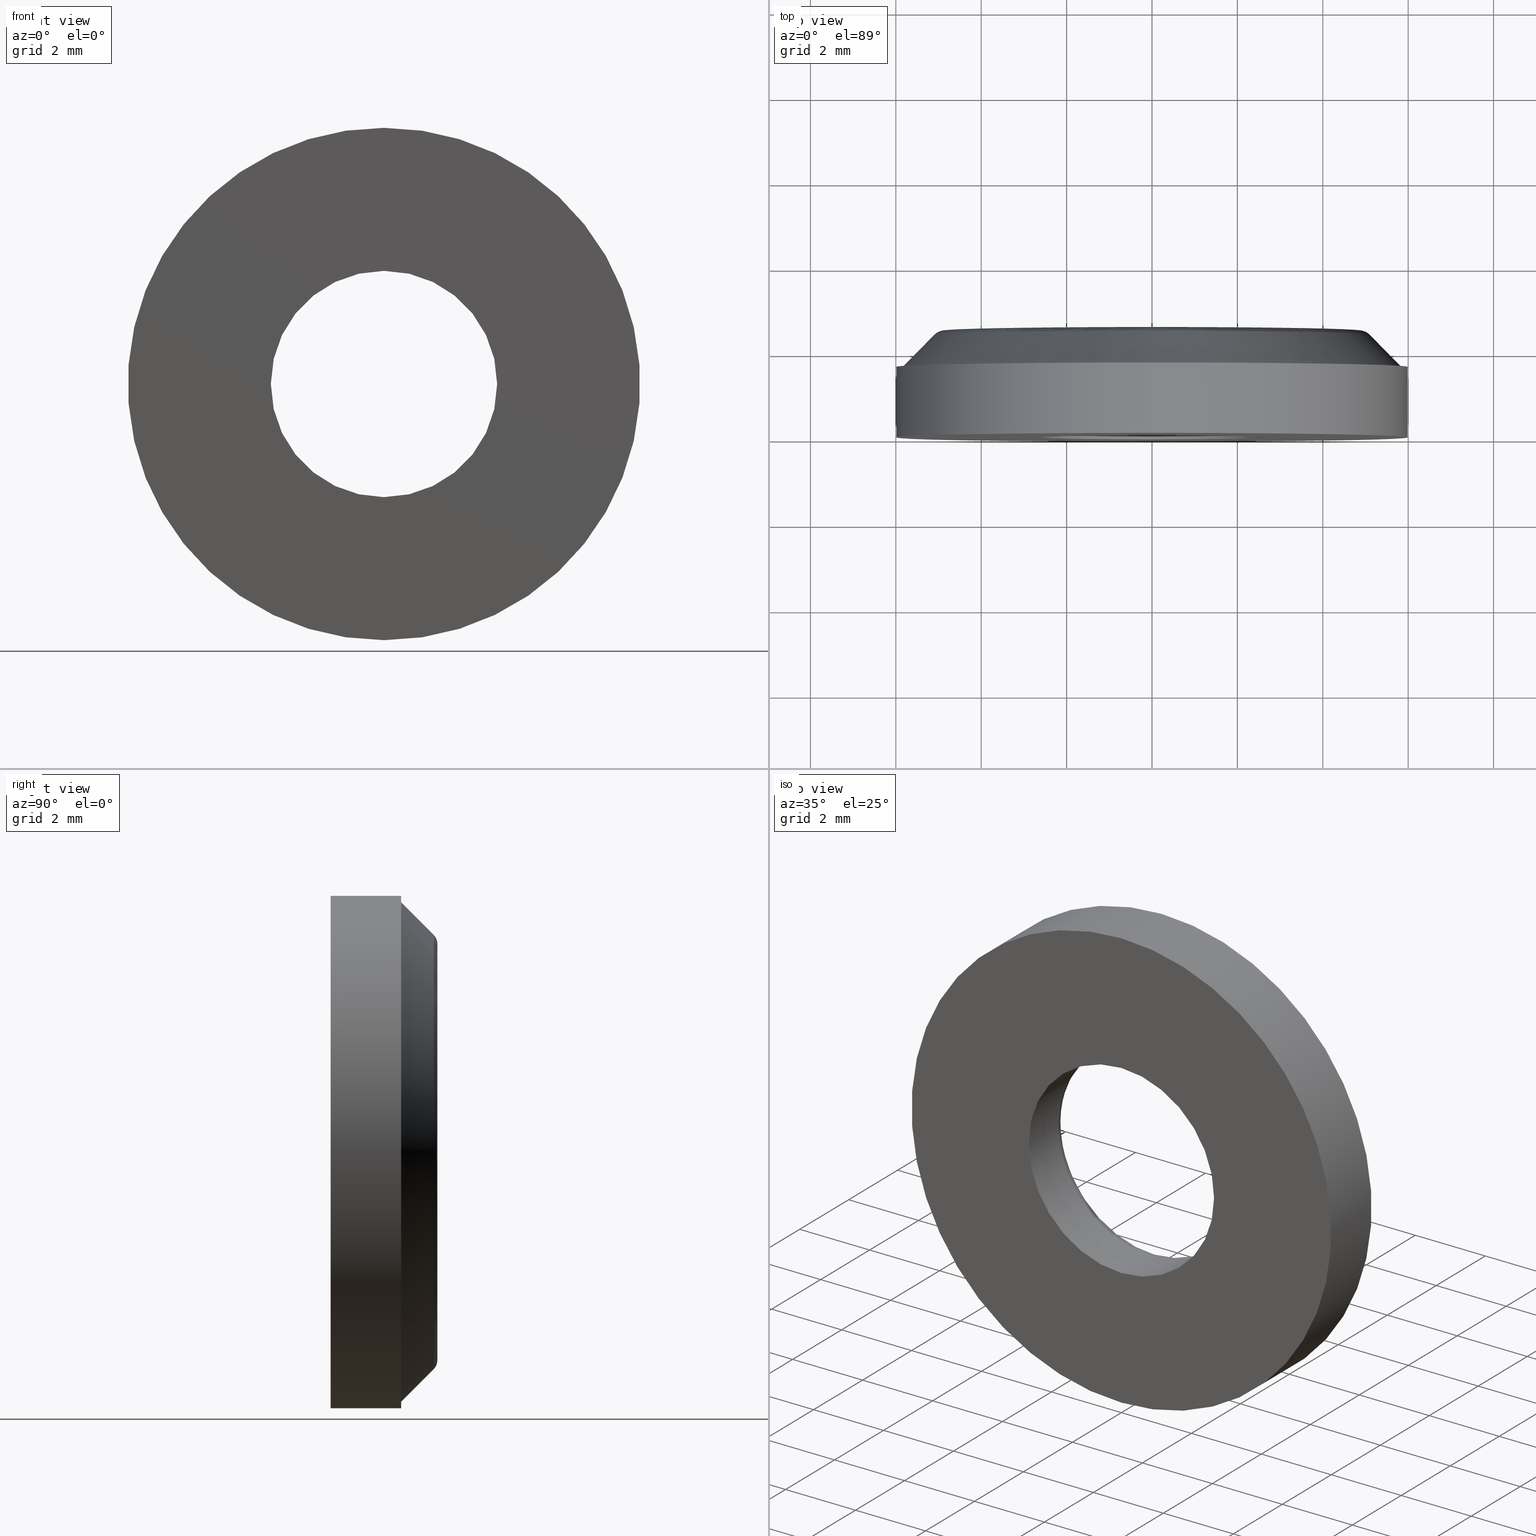
[diagram: canonical four-view strip — front | top / right | iso, engineering-drawing reading convention]
A machine part, canonical four-view strip (front | top / right | iso — engineering-drawing reading convention). The complete STEP part file that produces these views, byte-faithful:
ISO-10303-21;
HEADER;
FILE_DESCRIPTION (( 'STEP AP214' ),
    '1' );
FILE_NAME ('THA_270_3.STEP',
    '2015-04-27T05:53:08',
    ( '' ),
    ( '' ),
    'SwSTEP 2.0',
    'SolidWorks 2015',
    '' );
FILE_SCHEMA (( 'AUTOMOTIVE_DESIGN' ));
ENDSEC;

DATA;
#1 = CARTESIAN_POINT ( 'NONE',  ( 0.0000000000000000000, 2.500000000000000000, 0.0000000000000000000 ) ) ;
#2 = DIRECTION ( 'NONE',  ( 0.0000000000000000000, 1.000000000000000000, 0.0000000000000000000 ) ) ;
#3 = PLANE ( 'NONE',  #268 ) ;
#4 = DIRECTION ( 'NONE',  ( 0.0000000000000000000, 0.0000000000000000000, 1.000000000000000000 ) ) ;
#5 = CARTESIAN_POINT ( 'NONE',  ( 7.347880794884120700E-016, 2.500000000000000000, 6.000000000000000900 ) ) ;
#6 = ORIENTED_EDGE ( 'NONE', *, *, #134, .T. ) ;
#7 =( GEOMETRIC_REPRESENTATION_CONTEXT ( 3 ) GLOBAL_UNCERTAINTY_ASSIGNED_CONTEXT ( ( #231 ) ) GLOBAL_UNIT_ASSIGNED_CONTEXT ( ( #318, #25, #278 ) ) REPRESENTATION_CONTEXT ( 'NONE', 'WORKASPACE' ) );
#8 = DIRECTION ( 'NONE',  ( 0.0000000000000000000, 0.0000000000000000000, -1.000000000000000000 ) ) ;
#9 = CARTESIAN_POINT ( 'NONE',  ( 0.0000000000000000000, 2.500000000000000000, 0.0000000000000000000 ) ) ;
#10 = ADVANCED_FACE ( 'NONE', ( #365 ), #43, .T. ) ;
#11 = DIRECTION ( 'NONE',  ( -0.0000000000000000000, 1.000000000000000000, -0.0000000000000000000 ) ) ;
#12 = VECTOR ( 'NONE', #108, 1000.000000000000000 ) ;
#13 = VERTEX_POINT ( 'NONE', #41 ) ;
#14 = EDGE_CURVE ( 'NONE', #104, #13, #141, .T. ) ;
#15 = CIRCLE ( 'NONE', #37, 6.000000000000001800 ) ;
#16 = AXIS2_PLACEMENT_3D ( 'NONE', #465, #442, #262 ) ;
#17 = VERTEX_POINT ( 'NONE', #145 ) ;
#18 = ORIENTED_EDGE ( 'NONE', *, *, #426, .T. ) ;
#19 = FACE_BOUND ( 'NONE', #250, .T. ) ;
#20 = ORIENTED_EDGE ( 'NONE', *, *, #456, .T. ) ;
#21 = DIRECTION ( 'NONE',  ( 0.0000000000000000000, 0.0000000000000000000, 1.000000000000000000 ) ) ;
#22 = AXIS2_PLACEMENT_3D ( 'NONE', #1, #282, #329 ) ;
#23 =( REPRESENTATION_RELATIONSHIP ('NONE','NONE', #330, #362 ) REPRESENTATION_RELATIONSHIP_WITH_TRANSFORMATION ( #317 )SHAPE_REPRESENTATION_RELATIONSHIP( ) );
#24 = FACE_BOUND ( 'NONE', #175, .T. ) ;
#25 =( NAMED_UNIT ( * ) PLANE_ANGLE_UNIT ( ) SI_UNIT ( $, .RADIAN. ) );
#26 = VERTEX_POINT ( 'NONE', #59 ) ;
#27 = DIRECTION ( 'NONE',  ( 0.0000000000000000000, 0.0000000000000000000, 1.000000000000000000 ) ) ;
#28 = CARTESIAN_POINT ( 'NONE',  ( 0.0000000000000000000, 1.200000000000000200, 0.0000000000000000000 ) ) ;
#29 = CIRCLE ( 'NONE', #407, 0.2999999999999999300 ) ;
#30 = CIRCLE ( 'NONE', #357, 6.000000000000000900 ) ;
#31 = CARTESIAN_POINT ( 'NONE',  ( 5.021051876504147400E-016, 1.500000000000000000, -4.099999999999999600 ) ) ;
#32 = DIRECTION ( 'NONE',  ( 1.000000000000000000, 0.0000000000000000000, 0.0000000000000000000 ) ) ;
#33 = DIRECTION ( 'NONE',  ( 0.0000000000000000000, 1.000000000000000000, 0.0000000000000000000 ) ) ;
#34 = TOROIDAL_SURFACE ( 'NONE', #149, 4.875735931288076600, 0.2999999999999999900 ) ;
#35 = DIRECTION ( 'NONE',  ( 0.0000000000000000000, -1.000000000000000000, 0.0000000000000000000 ) ) ;
#36 = APPLICATION_PROTOCOL_DEFINITION ( 'draft international standard', 'automotive_design', 1998, #121 ) ;
#37 = AXIS2_PLACEMENT_3D ( 'NONE', #305, #509, #51 ) ;
#38 = CARTESIAN_POINT ( 'NONE',  ( 0.0000000000000000000, 0.0000000000000000000, 0.0000000000000000000 ) ) ;
#39 = EDGE_LOOP ( 'NONE', ( #384, #220, #395, #169 ) ) ;
#40 = DIRECTION ( 'NONE',  ( 1.000000000000000000, 0.0000000000000000000, 0.0000000000000000000 ) ) ;
#41 = CARTESIAN_POINT ( 'NONE',  ( 6.697512496811174300E-016, 2.412132034355963100, 5.087867965644041300 ) ) ;
#42 = EDGE_CURVE ( 'NONE', #448, #319, #363, .T. ) ;
#43 = TOROIDAL_SURFACE ( 'NONE', #401, 2.949999999999999300, 0.2999999999999999900 ) ;
#44 = ORIENTED_EDGE ( 'NONE', *, *, #381, .T. ) ;
#45 = DIRECTION ( 'NONE',  ( -0.0000000000000000000, 1.000000000000000000, -0.0000000000000000000 ) ) ;
#46 = EDGE_CURVE ( 'NONE', #13, #104, #255, .T. ) ;
#47 = AXIS2_PLACEMENT_3D ( 'NONE', #408, #161, #207 ) ;
#48 = ORIENTED_EDGE ( 'NONE', *, *, #296, .F. ) ;
#49 = ORIENTED_EDGE ( 'NONE', *, *, #266, .T. ) ;
#50 = ORIENTED_EDGE ( 'NONE', *, *, #53, .F. ) ;
#51 = DIRECTION ( 'NONE',  ( 0.0000000000000000000, 0.0000000000000000000, 1.000000000000000000 ) ) ;
#52 = PRODUCT_DEFINITION_SHAPE ( 'NONE', 'NONE',  #515 ) ;
#53 = EDGE_CURVE ( 'NONE', #508, #180, #30, .T. ) ;
#54 = EDGE_CURVE ( 'NONE', #17, #493, #453, .T. ) ;
#55 = CARTESIAN_POINT ( 'NONE',  ( 3.612708057484691600E-016, 1.200000000000000200, -2.949999999999999300 ) ) ;
#56 = VERTEX_POINT ( 'NONE', #310 ) ;
#57 = CARTESIAN_POINT ( 'NONE',  ( 7.164183775012018400E-016, 1.649999999999999900, 5.850000000000002300 ) ) ;
#58 = AXIS2_PLACEMENT_3D ( 'NONE', #188, #157, #191 ) ;
#59 = CARTESIAN_POINT ( 'NONE',  ( 3.245314017740485500E-016, 1.200000000000000200, 2.649999999999999500 ) ) ;
#60 = DIRECTION ( 'NONE',  ( 0.0000000000000000000, 1.000000000000000000, 0.0000000000000000000 ) ) ;
#61 = ORIENTED_EDGE ( 'NONE', *, *, #67, .F. ) ;
#62 = CARTESIAN_POINT ( 'NONE',  ( 5.021051876504147400E-016, 2.500000000000000000, -4.099999999999999600 ) ) ;
#63 = ORIENTED_EDGE ( 'NONE', *, *, #173, .T. ) ;
#64 = EDGE_CURVE ( 'NONE', #378, #156, #348, .T. ) ;
#65 = CARTESIAN_POINT ( 'NONE',  ( 0.0000000000000000000, 1.200000000000000200, 0.0000000000000000000 ) ) ;
#66 = DIRECTION ( 'NONE',  ( -0.0000000000000000000, -1.000000000000000000, -0.0000000000000000000 ) ) ;
#67 = EDGE_CURVE ( 'NONE', #56, #290, #238, .T. ) ;
#68 = DIRECTION ( 'NONE',  ( 0.0000000000000000000, -1.000000000000000000, 0.0000000000000000000 ) ) ;
#69 = FACE_BOUND ( 'NONE', #298, .T. ) ;
#70 = CARTESIAN_POINT ( 'NONE',  ( 0.0000000000000000000, 1.649999999999999900, 0.0000000000000000000 ) ) ;
#71 = EDGE_CURVE ( 'NONE', #156, #301, #133, .T. ) ;
#72 =( NAMED_UNIT ( * ) SI_UNIT ( $, .STERADIAN. ) SOLID_ANGLE_UNIT ( ) );
#73 = AXIS2_PLACEMENT_3D ( 'NONE', #38, #333, #374 ) ;
#74 = ORIENTED_EDGE ( 'NONE', *, *, #380, .T. ) ;
#75 = DIRECTION ( 'NONE',  ( 0.0000000000000000000, -0.0000000000000000000, 1.000000000000000000 ) ) ;
#76 = CARTESIAN_POINT ( 'NONE',  ( 0.0000000000000000000, 1.200000000000000200, -2.649999999999999500 ) ) ;
#77 = PLANE ( 'NONE',  #485 ) ;
#78 = DIRECTION ( 'NONE',  ( -0.0000000000000000000, -1.000000000000000000, -0.0000000000000000000 ) ) ;
#79 = CARTESIAN_POINT ( 'NONE',  ( 0.0000000000000000000, 0.0000000000000000000, 0.0000000000000000000 ) ) ;
#80 = EDGE_CURVE ( 'NONE', #261, #91, #457, .T. ) ;
#81 = AXIS2_PLACEMENT_3D ( 'NONE', #181, #321, #40 ) ;
#82 = CARTESIAN_POINT ( 'NONE',  ( 0.0000000000000000000, 2.412132034355963100, 0.0000000000000000000 ) ) ;
#83 = ORIENTED_EDGE ( 'NONE', *, *, #467, .T. ) ;
#84 = EDGE_LOOP ( 'NONE', ( #162, #49, #88, #153 ) ) ;
#85 = FACE_OUTER_BOUND ( 'NONE', #373, .T. ) ;
#86 = LINE ( 'NONE', #57, #452 ) ;
#87 = LINE ( 'NONE', #399, #287 ) ;
#88 = ORIENTED_EDGE ( 'NONE', *, *, #144, .T. ) ;
#89 = AXIS2_PLACEMENT_3D ( 'NONE', #201, #35, #482 ) ;
#90 = FACE_OUTER_BOUND ( 'NONE', #289, .T. ) ;
#91 = VERTEX_POINT ( 'NONE', #151 ) ;
#92 = ORIENTED_EDGE ( 'NONE', *, *, #340, .T. ) ;
#93 = SURFACE_STYLE_FILL_AREA ( #284 ) ;
#94 =( LENGTH_UNIT ( ) NAMED_UNIT ( * ) SI_UNIT ( .MILLI., .METRE. ) );
#95 = EDGE_CURVE ( 'NONE', #17, #508, #113, .T. ) ;
#96 = CIRCLE ( 'NONE', #281, 4.099999999999999600 ) ;
#97 = EDGE_LOOP ( 'NONE', ( #273, #20, #483, #233 ) ) ;
#98 = AXIS2_PLACEMENT_3D ( 'NONE', #474, #236, #390 ) ;
#99 = CARTESIAN_POINT ( 'NONE',  ( 0.0000000000000000000, 1.500000000000000000, 0.0000000000000000000 ) ) ;
#100 = CYLINDRICAL_SURFACE ( 'NONE', #58, 6.000000000000000900 ) ;
#101 = FILL_AREA_STYLE ('',( #263 ) ) ;
#102 = APPLICATION_PROTOCOL_DEFINITION ( 'draft international standard', 'automotive_design', 1998, #206 ) ;
#103 = SHAPE_DEFINITION_REPRESENTATION ( #226, #362 ) ;
#104 = VERTEX_POINT ( 'NONE', #123 ) ;
#105 = CARTESIAN_POINT ( 'NONE',  ( 0.0000000000000000000, 0.0000000000000000000, -6.000000000000000900 ) ) ;
#106 = EDGE_LOOP ( 'NONE', ( #44, #214, #337, #225 ) ) ;
#107 = AXIS2_PLACEMENT_3D ( 'NONE', #234, #359, #155 ) ;
#108 = DIRECTION ( 'NONE',  ( -0.0000000000000000000, -1.000000000000000000, -0.0000000000000000000 ) ) ;
#109 = CARTESIAN_POINT ( 'NONE',  ( 7.164183775012018400E-016, 1.649999999999999900, 5.850000000000002300 ) ) ;
#110 = DIRECTION ( 'NONE',  ( 0.0000000000000000000, 0.0000000000000000000, 1.000000000000000000 ) ) ;
#111 = ADVANCED_FACE ( 'NONE', ( #19, #325 ), #77, .F. ) ;
#112 = DIRECTION ( 'NONE',  ( -0.0000000000000000000, 1.000000000000000000, -0.0000000000000000000 ) ) ;
#113 = LINE ( 'NONE', #235, #12 ) ;
#114 = DIRECTION ( 'NONE',  ( -0.0000000000000000000, 1.000000000000000000, -0.0000000000000000000 ) ) ;
#115 = CARTESIAN_POINT ( 'NONE',  ( 0.0000000000000000000, 1.500000000000000000, 0.0000000000000000000 ) ) ;
#116 = CYLINDRICAL_SURFACE ( 'NONE', #245, 6.000000000000000900 ) ;
#117 = ADVANCED_FACE ( 'NONE', ( #424 ), #512, .F. ) ;
#118 = FACE_BOUND ( 'NONE', #345, .T. ) ;
#119 = DIRECTION ( 'NONE',  ( 0.0000000000000000000, 1.000000000000000000, 0.0000000000000000000 ) ) ;
#120 = EDGE_CURVE ( 'NONE', #301, #320, #96, .T. ) ;
#121 = APPLICATION_CONTEXT ( 'automotive_design' ) ;
#122 = AXIS2_PLACEMENT_3D ( 'NONE', #311, #361, #430 ) ;
#123 = CARTESIAN_POINT ( 'NONE',  ( 0.0000000000000000000, 2.412132034355963100, -5.087867965644041300 ) ) ;
#124 = AXIS2_PLACEMENT_3D ( 'NONE', #251, #447, #480 ) ;
#125 = ORIENTED_EDGE ( 'NONE', *, *, #139, .F. ) ;
#126 = ORIENTED_EDGE ( 'NONE', *, *, #80, .F. ) ;
#127 = DIRECTION ( 'NONE',  ( 1.000000000000000000, -0.0000000000000000000, 1.224646799147353200E-016 ) ) ;
#128 = CARTESIAN_POINT ( 'NONE',  ( 0.0000000000000000000, 1.649999999999999900, 5.850000000000002300 ) ) ;
#129 = PLANE ( 'NONE',  #328 ) ;
#130 = ADVANCED_FACE ( 'NONE', ( #217 ), #224, .T. ) ;
#131 = EDGE_CURVE ( 'NONE', #148, #432, #416, .T. ) ;
#132 = COLOUR_RGB ( '',0.7921568627450980000, 0.8196078431372548800, 0.9333333333333333500 ) ;
#133 = LINE ( 'NONE', #354, #439 ) ;
#134 = EDGE_CURVE ( 'NONE', #319, #448, #343, .T. ) ;
#135 = ORIENTED_EDGE ( 'NONE', *, *, #418, .T. ) ;
#136 = AXIS2_PLACEMENT_3D ( 'NONE', #279, #119, #239 ) ;
#137 = LINE ( 'NONE', #253, #500 ) ;
#138 = EDGE_LOOP ( 'NONE', ( #389, #48, #142, #498 ) ) ;
#139 = EDGE_CURVE ( 'NONE', #320, #301, #306, .T. ) ;
#140 =( GEOMETRIC_REPRESENTATION_CONTEXT ( 3 ) GLOBAL_UNCERTAINTY_ASSIGNED_CONTEXT ( ( #172 ) ) GLOBAL_UNIT_ASSIGNED_CONTEXT ( ( #237, #351, #481 ) ) REPRESENTATION_CONTEXT ( 'NONE', 'WORKASPACE' ) );
#141 = CIRCLE ( 'NONE', #293, 5.087867965644041300 ) ;
#142 = ORIENTED_EDGE ( 'NONE', *, *, #294, .T. ) ;
#143 = SHAPE_REPRESENTATION_RELATIONSHIP ( 'NONE' , 'NONE' ,  #362, #494 ) ;
#144 = EDGE_CURVE ( 'NONE', #180, #508, #203, .T. ) ;
#145 = CARTESIAN_POINT ( 'NONE',  ( 0.0000000000000000000, 1.649999999999999900, -6.000000000000002700 ) ) ;
#146 = EDGE_CURVE ( 'NONE', #505, #91, #503, .T. ) ;
#147 = SURFACE_SIDE_STYLE ('',( #93 ) ) ;
#148 = VERTEX_POINT ( 'NONE', #276 ) ;
#149 = AXIS2_PLACEMENT_3D ( 'NONE', #446, #2, #110 ) ;
#150 = CARTESIAN_POINT ( 'NONE',  ( 0.0000000000000000000, 0.0000000000000000000, 0.0000000000000000000 ) ) ;
#151 = CARTESIAN_POINT ( 'NONE',  ( 0.0000000000000000000, 0.0000000000000000000, -2.649999999999999500 ) ) ;
#152 = UNCERTAINTY_MEASURE_WITH_UNIT (LENGTH_MEASURE( 1.000000000000000100E-005 ), #94, 'distance_accuracy_value', 'NONE');
#153 = ORIENTED_EDGE ( 'NONE', *, *, #95, .F. ) ;
#154 = ADVANCED_FACE ( 'NONE', ( #183 ), #403, .T. ) ;
#155 = DIRECTION ( 'NONE',  ( 1.000000000000000000, 0.0000000000000000000, 0.0000000000000000000 ) ) ;
#156 = VERTEX_POINT ( 'NONE', #31 ) ;
#157 = DIRECTION ( 'NONE',  ( -0.0000000000000000000, -1.000000000000000000, -0.0000000000000000000 ) ) ;
#158 = AXIS2_PLACEMENT_3D ( 'NONE', #55, #127, #441 ) ;
#159 = DIRECTION ( 'NONE',  ( -0.0000000000000000000, -1.000000000000000000, -0.0000000000000000000 ) ) ;
#160 = APPLICATION_CONTEXT ( 'automotive_design' ) ;
#161 = DIRECTION ( 'NONE',  ( 0.0000000000000000000, 1.000000000000000000, 0.0000000000000000000 ) ) ;
#162 = ORIENTED_EDGE ( 'NONE', *, *, #418, .F. ) ;
#163 = CARTESIAN_POINT ( 'NONE',  ( 0.0000000000000000000, 1.200000000000000200, 2.949999999999999300 ) ) ;
#164 = CARTESIAN_POINT ( 'NONE',  ( 0.0000000000000000000, 1.500000000000000000, 2.949999999999999300 ) ) ;
#165 = DIRECTION ( 'NONE',  ( 0.0000000000000000000, 0.0000000000000000000, -1.000000000000000000 ) ) ;
#166 = EDGE_CURVE ( 'NONE', #26, #261, #87, .T. ) ;
#167 = AXIS2_PLACEMENT_3D ( 'NONE', #150, #372, #196 ) ;
#168 = DIRECTION ( 'NONE',  ( 0.0000000000000000000, -1.000000000000000000, 0.0000000000000000000 ) ) ;
#169 = ORIENTED_EDGE ( 'NONE', *, *, #53, .T. ) ;
#170 = ORIENTED_EDGE ( 'NONE', *, *, #144, .F. ) ;
#171 = CARTESIAN_POINT ( 'NONE',  ( 0.0000000000000000000, 2.500000000000000000, 0.0000000000000000000 ) ) ;
#172 = UNCERTAINTY_MEASURE_WITH_UNIT (LENGTH_MEASURE( 1.000000000000000100E-005 ), #237, 'distance_accuracy_value', 'NONE');
#173 = EDGE_CURVE ( 'NONE', #104, #56, #137, .T. ) ;
#174 = FACE_OUTER_BOUND ( 'NONE', #97, .T. ) ;
#175 = EDGE_LOOP ( 'NONE', ( #125, #458 ) ) ;
#176 = ORIENTED_EDGE ( 'NONE', *, *, #294, .F. ) ;
#177 = AXIS2_PLACEMENT_3D ( 'NONE', #227, #396, #4 ) ;
#178 = VECTOR ( 'NONE', #197, 1000.000000000000000 ) ;
#179 = ORIENTED_EDGE ( 'NONE', *, *, #46, .T. ) ;
#180 = VERTEX_POINT ( 'NONE', #230 ) ;
#181 = CARTESIAN_POINT ( 'NONE',  ( 0.0000000000000000000, 0.0000000000000000000, 0.0000000000000000000 ) ) ;
#182 = APPLICATION_CONTEXT ( 'automotive_design' ) ;
#183 = FACE_OUTER_BOUND ( 'NONE', #350, .T. ) ;
#184 = ORIENTED_EDGE ( 'NONE', *, *, #166, .F. ) ;
#185 = DIRECTION ( 'NONE',  ( 0.0000000000000000000, 0.0000000000000000000, 1.000000000000000000 ) ) ;
#186 = CARTESIAN_POINT ( 'NONE',  ( 0.0000000000000000000, 2.500000000000000000, 4.099999999999999600 ) ) ;
#187 = PRESENTATION_STYLE_ASSIGNMENT (( #427 ) ) ;
#188 = CARTESIAN_POINT ( 'NONE',  ( 0.0000000000000000000, 2.500000000000000000, 0.0000000000000000000 ) ) ;
#189 = DIRECTION ( 'NONE',  ( 0.0000000000000000000, 1.000000000000000000, 0.0000000000000000000 ) ) ;
#190 = EDGE_CURVE ( 'NONE', #13, #448, #304, .T. ) ;
#191 = DIRECTION ( 'NONE',  ( 0.0000000000000000000, 0.0000000000000000000, -1.000000000000000000 ) ) ;
#192 = ORIENTED_EDGE ( 'NONE', *, *, #467, .F. ) ;
#193 = PRODUCT_DEFINITION ( 'UNKNOWN', '', #341, #370 ) ;
#194 = DIRECTION ( 'NONE',  ( -0.0000000000000000000, 1.000000000000000000, -0.0000000000000000000 ) ) ;
#195 = ORIENTED_EDGE ( 'NONE', *, *, #264, .F. ) ;
#196 = DIRECTION ( 'NONE',  ( 1.000000000000000000, 0.0000000000000000000, 0.0000000000000000000 ) ) ;
#197 = DIRECTION ( 'NONE',  ( -0.0000000000000000000, -1.000000000000000000, -0.0000000000000000000 ) ) ;
#198 = CARTESIAN_POINT ( 'NONE',  ( 0.0000000000000000000, 2.500000000000000000, 0.0000000000000000000 ) ) ;
#199 = DIRECTION ( 'NONE',  ( 0.0000000000000000000, -0.7071067811865489100, -0.7071067811865462400 ) ) ;
#200 = EDGE_CURVE ( 'NONE', #148, #505, #386, .T. ) ;
#201 = CARTESIAN_POINT ( 'NONE',  ( 0.0000000000000000000, 1.649999999999999900, 0.0000000000000000000 ) ) ;
#202 = CARTESIAN_POINT ( 'NONE',  ( 0.0000000000000000000, 1.500000000000000000, 4.099999999999999600 ) ) ;
#203 = CIRCLE ( 'NONE', #73, 6.000000000000000900 ) ;
#204 = ORIENTED_EDGE ( 'NONE', *, *, #14, .F. ) ;
#205 = DIRECTION ( 'NONE',  ( 0.0000000000000000000, -1.000000000000000000, 0.0000000000000000000 ) ) ;
#206 = APPLICATION_CONTEXT ( 'automotive_design' ) ;
#207 = DIRECTION ( 'NONE',  ( 0.0000000000000000000, 0.0000000000000000000, 1.000000000000000000 ) ) ;
#208 = CONICAL_SURFACE ( 'NONE', #89, 5.850000000000002300, 0.7853981633974463900 ) ;
#209 = CIRCLE ( 'NONE', #506, 2.649999999999999500 ) ;
#210 =( NAMED_UNIT ( * ) PLANE_ANGLE_UNIT ( ) SI_UNIT ( $, .RADIAN. ) );
#211 = AXIS2_PLACEMENT_3D ( 'NONE', #198, #68, #303 ) ;
#212 = ORIENTED_EDGE ( 'NONE', *, *, #71, .T. ) ;
#213 = ADVANCED_FACE ( 'NONE', ( #352 ), #116, .T. ) ;
#214 = ORIENTED_EDGE ( 'NONE', *, *, #166, .T. ) ;
#215 = DIRECTION ( 'NONE',  ( 0.0000000000000000000, 0.0000000000000000000, -1.000000000000000000 ) ) ;
#216 = EDGE_CURVE ( 'NONE', #378, #320, #367, .T. ) ;
#217 = FACE_OUTER_BOUND ( 'NONE', #464, .T. ) ;
#218 = EDGE_LOOP ( 'NONE', ( #383, #6 ) ) ;
#219 = FACE_OUTER_BOUND ( 'NONE', #260, .T. ) ;
#220 = ORIENTED_EDGE ( 'NONE', *, *, #54, .F. ) ;
#221 = ORIENTED_EDGE ( 'NONE', *, *, #134, .F. ) ;
#222 = CONTEXT_DEPENDENT_SHAPE_REPRESENTATION ( #23, #52 ) ;
#223 = UNCERTAINTY_MEASURE_WITH_UNIT (LENGTH_MEASURE( 1.000000000000000100E-005 ), #444, 'distance_accuracy_value', 'NONE');
#224 = TOROIDAL_SURFACE ( 'NONE', #511, 2.949999999999999300, 0.2999999999999999900 ) ;
#225 = ORIENTED_EDGE ( 'NONE', *, *, #146, .F. ) ;
#226 = PRODUCT_DEFINITION_SHAPE ( 'NONE', 'NONE',  #193 ) ;
#227 = CARTESIAN_POINT ( 'NONE',  ( 0.0000000000000000000, 1.500000000000000000, 0.0000000000000000000 ) ) ;
#228 = ADVANCED_FACE ( 'NONE', ( #118, #90 ), #3, .F. ) ;
#229 = FACE_OUTER_BOUND ( 'NONE', #497, .T. ) ;
#230 = CARTESIAN_POINT ( 'NONE',  ( 7.347880794884120700E-016, 0.0000000000000000000, 6.000000000000000900 ) ) ;
#231 = UNCERTAINTY_MEASURE_WITH_UNIT (LENGTH_MEASURE( 1.000000000000000100E-005 ), #318, 'distance_accuracy_value', 'NONE');
#232 = EDGE_LOOP ( 'NONE', ( #50, #170 ) ) ;
#233 = ORIENTED_EDGE ( 'NONE', *, *, #173, .F. ) ;
#234 = CARTESIAN_POINT ( 'NONE',  ( 0.0000000000000000000, 0.0000000000000000000, 0.0000000000000000000 ) ) ;
#235 = CARTESIAN_POINT ( 'NONE',  ( 0.0000000000000000000, 2.500000000000000000, -6.000000000000000900 ) ) ;
#236 = DIRECTION ( 'NONE',  ( -1.000000000000000000, 0.0000000000000000000, 0.0000000000000000000 ) ) ;
#237 =( LENGTH_UNIT ( ) NAMED_UNIT ( * ) SI_UNIT ( .MILLI., .METRE. ) );
#238 = CIRCLE ( 'NONE', #256, 5.850000000000002300 ) ;
#239 = DIRECTION ( 'NONE',  ( 0.0000000000000000000, 0.0000000000000000000, 1.000000000000000000 ) ) ;
#240 = CARTESIAN_POINT ( 'NONE',  ( 0.0000000000000000000, 0.0000000000000000000, 0.0000000000000000000 ) ) ;
#241 = DIRECTION ( 'NONE',  ( -0.0000000000000000000, 1.000000000000000000, -0.0000000000000000000 ) ) ;
#242 = ADVANCED_FACE ( 'NONE', ( #312, #24 ), #129, .T. ) ;
#243 = ADVANCED_FACE ( 'NONE', ( #85 ), #313, .F. ) ;
#244 = PRODUCT_CONTEXT ( 'NONE', #206, 'mechanical' ) ;
#245 = AXIS2_PLACEMENT_3D ( 'NONE', #433, #66, #165 ) ;
#246 = COLOUR_RGB ( '',0.7921568627450980000, 0.8196078431372548800, 0.9333333333333333500 ) ;
#247 = DIRECTION ( 'NONE',  ( 0.0000000000000000000, 1.000000000000000000, 0.0000000000000000000 ) ) ;
#248 = CARTESIAN_POINT ( 'NONE',  ( 0.0000000000000000000, 2.500000000000000000, 4.875735931288076600 ) ) ;
#249 = DIRECTION ( 'NONE',  ( 0.0000000000000000000, 1.000000000000000000, 0.0000000000000000000 ) ) ;
#250 = EDGE_LOOP ( 'NONE', ( #18, #476 ) ) ;
#251 = CARTESIAN_POINT ( 'NONE',  ( 0.0000000000000000000, 2.500000000000000000, 0.0000000000000000000 ) ) ;
#252 = PRODUCT_DEFINITION ( 'UNKNOWN', '', #271, #295 ) ;
#253 = CARTESIAN_POINT ( 'NONE',  ( 0.0000000000000000000, 1.649999999999999900, -5.850000000000002300 ) ) ;
#254 = DIRECTION ( 'NONE',  ( 0.0000000000000000000, 0.0000000000000000000, 1.000000000000000000 ) ) ;
#255 = CIRCLE ( 'NONE', #309, 5.087867965644041300 ) ;
#256 = AXIS2_PLACEMENT_3D ( 'NONE', #272, #194, #471 ) ;
#257 = ORIENTED_EDGE ( 'NONE', *, *, #190, .F. ) ;
#258 = STYLED_ITEM ( 'NONE', ( #187 ), #501 ) ;
#259 = CIRCLE ( 'NONE', #353, 5.850000000000002300 ) ;
#260 = EDGE_LOOP ( 'NONE', ( #421, #379, #455, #221 ) ) ;
#261 = VERTEX_POINT ( 'NONE', #364 ) ;
#262 = DIRECTION ( 'NONE',  ( 0.0000000000000000000, 0.0000000000000000000, 1.000000000000000000 ) ) ;
#263 = FILL_AREA_STYLE_COLOUR ( '', #132 ) ;
#264 = EDGE_CURVE ( 'NONE', #290, #56, #259, .T. ) ;
#265 = CIRCLE ( 'NONE', #454, 2.649999999999999500 ) ;
#266 = EDGE_CURVE ( 'NONE', #493, #180, #344, .T. ) ;
#267 = DIRECTION ( 'NONE',  ( 0.0000000000000000000, 0.0000000000000000000, 1.000000000000000000 ) ) ;
#268 = AXIS2_PLACEMENT_3D ( 'NONE', #128, #168, #451 ) ;
#269 = ORIENTED_EDGE ( 'NONE', *, *, #296, .T. ) ;
#270 = DIRECTION ( 'NONE',  ( 0.0000000000000000000, 0.0000000000000000000, 1.000000000000000000 ) ) ;
#271 = PRODUCT_DEFINITION_FORMATION_WITH_SPECIFIED_SOURCE ( 'ANY', '', #423, .NOT_KNOWN. ) ;
#272 = CARTESIAN_POINT ( 'NONE',  ( 0.0000000000000000000, 1.649999999999999900, 0.0000000000000000000 ) ) ;
#273 = ORIENTED_EDGE ( 'NONE', *, *, #14, .T. ) ;
#274 = PLANE ( 'NONE',  #286 ) ;
#275 = ORIENTED_EDGE ( 'NONE', *, *, #71, .F. ) ;
#276 = CARTESIAN_POINT ( 'NONE',  ( 3.612708057484691600E-016, 1.500000000000000000, -2.949999999999999300 ) ) ;
#277 = ADVANCED_FACE ( 'NONE', ( #229 ), #495, .F. ) ;
#278 =( NAMED_UNIT ( * ) SI_UNIT ( $, .STERADIAN. ) SOLID_ANGLE_UNIT ( ) );
#279 = CARTESIAN_POINT ( 'NONE',  ( 0.0000000000000000000, 2.200000000000000200, 0.0000000000000000000 ) ) ;
#280 = DIRECTION ( 'NONE',  ( 0.0000000000000000000, 0.0000000000000000000, 1.000000000000000000 ) ) ;
#281 = AXIS2_PLACEMENT_3D ( 'NONE', #431, #316, #358 ) ;
#282 = DIRECTION ( 'NONE',  ( 0.0000000000000000000, 1.000000000000000000, 0.0000000000000000000 ) ) ;
#283 = ORIENTED_EDGE ( 'NONE', *, *, #340, .F. ) ;
#284 = FILL_AREA_STYLE ('',( #332 ) ) ;
#285 = CARTESIAN_POINT ( 'NONE',  ( 0.0000000000000000000, 2.500000000000000000, -2.649999999999999500 ) ) ;
#286 = AXIS2_PLACEMENT_3D ( 'NONE', #99, #463, #514 ) ;
#287 = VECTOR ( 'NONE', #486, 1000.000000000000000 ) ;
#288 = AXIS2_PLACEMENT_3D ( 'NONE', #79, #487, #270 ) ;
#289 = EDGE_LOOP ( 'NONE', ( #307, #135 ) ) ;
#290 = VERTEX_POINT ( 'NONE', #109 ) ;
#291 = CARTESIAN_POINT ( 'NONE',  ( 0.0000000000000000000, 1.500000000000000000, 0.0000000000000000000 ) ) ;
#292 = CARTESIAN_POINT ( 'NONE',  ( 0.0000000000000000000, 1.649999999999999900, 0.0000000000000000000 ) ) ;
#293 = AXIS2_PLACEMENT_3D ( 'NONE', #409, #466, #336 ) ;
#294 = EDGE_CURVE ( 'NONE', #432, #26, #29, .T. ) ;
#295 = PRODUCT_DEFINITION_CONTEXT ( 'detailed design', #182, 'design' ) ;
#296 = EDGE_CURVE ( 'NONE', #432, #148, #400, .T. ) ;
#297 = VECTOR ( 'NONE', #205, 1000.000000000000000 ) ;
#298 = EDGE_LOOP ( 'NONE', ( #269, #338 ) ) ;
#299 = AXIS2_PLACEMENT_3D ( 'NONE', #393, #78, #308 ) ;
#300 = ORIENTED_EDGE ( 'NONE', *, *, #200, .T. ) ;
#301 = VERTEX_POINT ( 'NONE', #62 ) ;
#302 = PRODUCT_RELATED_PRODUCT_CATEGORY ( 'part', '', ( #423 ) ) ;
#303 = DIRECTION ( 'NONE',  ( 0.0000000000000000000, 0.0000000000000000000, -1.000000000000000000 ) ) ;
#304 = CIRCLE ( 'NONE', #98, 0.2999999999999999300 ) ;
#305 = CARTESIAN_POINT ( 'NONE',  ( 0.0000000000000000000, 1.649999999999999900, 0.0000000000000000000 ) ) ;
#306 = CIRCLE ( 'NONE', #47, 4.099999999999999600 ) ;
#307 = ORIENTED_EDGE ( 'NONE', *, *, #54, .T. ) ;
#308 = DIRECTION ( 'NONE',  ( 0.0000000000000000000, 0.0000000000000000000, 1.000000000000000000 ) ) ;
#309 = AXIS2_PLACEMENT_3D ( 'NONE', #82, #339, #8 ) ;
#310 = CARTESIAN_POINT ( 'NONE',  ( 0.0000000000000000000, 1.649999999999999900, -5.850000000000002300 ) ) ;
#311 = CARTESIAN_POINT ( 'NONE',  ( 0.0000000000000000000, 1.649999999999999900, 0.0000000000000000000 ) ) ;
#312 = FACE_OUTER_BOUND ( 'NONE', #218, .T. ) ;
#313 = CYLINDRICAL_SURFACE ( 'NONE', #382, 2.649999999999999500 ) ;
#314 = SURFACE_SIDE_STYLE ('',( #438 ) ) ;
#315 = PRESENTATION_LAYER_ASSIGNMENT (  '', '', ( #258 ) ) ;
#316 = DIRECTION ( 'NONE',  ( 0.0000000000000000000, 1.000000000000000000, 0.0000000000000000000 ) ) ;
#317 = ITEM_DEFINED_TRANSFORMATION ( 'NONE', 'NONE', #107,  #419 ) ;
#318 =( LENGTH_UNIT ( ) NAMED_UNIT ( * ) SI_UNIT ( .MILLI., .METRE. ) );
#319 = VERTEX_POINT ( 'NONE', #412 ) ;
#320 = VERTEX_POINT ( 'NONE', #186 ) ;
#321 = DIRECTION ( 'NONE',  ( 0.0000000000000000000, 0.0000000000000000000, 1.000000000000000000 ) ) ;
#322 = SURFACE_STYLE_USAGE ( .BOTH. , #314 ) ;
#323 = APPLICATION_PROTOCOL_DEFINITION ( 'draft international standard', 'automotive_design', 1998, #182 ) ;
#324 = SHAPE_DEFINITION_REPRESENTATION ( #513, #330 ) ;
#325 = FACE_OUTER_BOUND ( 'NONE', #232, .T. ) ;
#326 = ORIENTED_EDGE ( 'NONE', *, *, #456, .F. ) ;
#327 = CARTESIAN_POINT ( 'NONE',  ( 0.0000000000000000000, 0.0000000000000000000, 0.0000000000000000000 ) ) ;
#328 = AXIS2_PLACEMENT_3D ( 'NONE', #9, #247, #413 ) ;
#329 = DIRECTION ( 'NONE',  ( 0.0000000000000000000, 0.0000000000000000000, 1.000000000000000000 ) ) ;
#330 = SHAPE_REPRESENTATION ( 'THA_270_3', ( #167, #107 ), #140 ) ;
#331 = FACE_OUTER_BOUND ( 'NONE', #434, .T. ) ;
#332 = FILL_AREA_STYLE_COLOUR ( '', #246 ) ;
#333 = DIRECTION ( 'NONE',  ( 0.0000000000000000000, 1.000000000000000000, 0.0000000000000000000 ) ) ;
#334 = DIRECTION ( 'NONE',  ( 8.659560562354915600E-017, -0.7071067811865489100, 0.7071067811865462400 ) ) ;
#335 = PRESENTATION_STYLE_ASSIGNMENT (( #322 ) ) ;
#336 = DIRECTION ( 'NONE',  ( 0.0000000000000000000, 0.0000000000000000000, -1.000000000000000000 ) ) ;
#337 = ORIENTED_EDGE ( 'NONE', *, *, #426, .F. ) ;
#338 = ORIENTED_EDGE ( 'NONE', *, *, #131, .T. ) ;
#339 = DIRECTION ( 'NONE',  ( 0.0000000000000000000, -1.000000000000000000, 0.0000000000000000000 ) ) ;
#340 = EDGE_CURVE ( 'NONE', #26, #505, #265, .T. ) ;
#341 = PRODUCT_DEFINITION_FORMATION_WITH_SPECIFIED_SOURCE ( 'ANY', '', #459, .NOT_KNOWN. ) ;
#342 = DIRECTION ( 'NONE',  ( 0.0000000000000000000, 0.0000000000000000000, 1.000000000000000000 ) ) ;
#343 = CIRCLE ( 'NONE', #22, 4.875735931288076600 ) ;
#344 = LINE ( 'NONE', #5, #178 ) ;
#345 = EDGE_LOOP ( 'NONE', ( #61, #195 ) ) ;
#346 = MECHANICAL_DESIGN_GEOMETRIC_PRESENTATION_REPRESENTATION (  '', ( #258 ), #376 ) ;
#347 = CONICAL_SURFACE ( 'NONE', #122, 5.850000000000002300, 0.7853981633974463900 ) ;
#348 = CIRCLE ( 'NONE', #388, 4.099999999999999600 ) ;
#349 = CARTESIAN_POINT ( 'NONE',  ( 0.0000000000000000000, 1.200000000000000200, 0.0000000000000000000 ) ) ;
#350 = EDGE_LOOP ( 'NONE', ( #204, #74, #420, #257 ) ) ;
#351 =( NAMED_UNIT ( * ) PLANE_ANGLE_UNIT ( ) SI_UNIT ( $, .RADIAN. ) );
#352 = FACE_OUTER_BOUND ( 'NONE', #84, .T. ) ;
#353 = AXIS2_PLACEMENT_3D ( 'NONE', #292, #45, #342 ) ;
#354 = CARTESIAN_POINT ( 'NONE',  ( 5.021051876504147400E-016, 1.500000000000000000, -4.099999999999999600 ) ) ;
#355 = DIRECTION ( 'NONE',  ( -0.0000000000000000000, 1.000000000000000000, -0.0000000000000000000 ) ) ;
#356 = EDGE_LOOP ( 'NONE', ( #275, #385, #489, #510 ) ) ;
#357 = AXIS2_PLACEMENT_3D ( 'NONE', #327, #33, #280 ) ;
#358 = DIRECTION ( 'NONE',  ( 0.0000000000000000000, 0.0000000000000000000, 1.000000000000000000 ) ) ;
#359 = DIRECTION ( 'NONE',  ( 0.0000000000000000000, 0.0000000000000000000, 1.000000000000000000 ) ) ;
#360 = PRODUCT_RELATED_PRODUCT_CATEGORY ( 'part', '', ( #459 ) ) ;
#361 = DIRECTION ( 'NONE',  ( 0.0000000000000000000, -1.000000000000000000, 0.0000000000000000000 ) ) ;
#362 = SHAPE_REPRESENTATION ( 'facing ring', ( #419 ), #392 ) ;
#363 = CIRCLE ( 'NONE', #124, 4.875735931288076600 ) ;
#364 = CARTESIAN_POINT ( 'NONE',  ( 3.245314017740485500E-016, 0.0000000000000000000, 2.649999999999999500 ) ) ;
#365 = FACE_OUTER_BOUND ( 'NONE', #138, .T. ) ;
#366 = DIRECTION ( 'NONE',  ( 0.0000000000000000000, 0.0000000000000000000, 1.000000000000000000 ) ) ;
#367 = LINE ( 'NONE', #202, #490 ) ;
#368 = AXIS2_PLACEMENT_3D ( 'NONE', #70, #114, #366 ) ;
#369 = FACE_OUTER_BOUND ( 'NONE', #106, .T. ) ;
#370 = PRODUCT_DEFINITION_CONTEXT ( 'detailed design', #121, 'design' ) ;
#371 = DIRECTION ( 'NONE',  ( 0.0000000000000000000, 1.000000000000000000, 0.0000000000000000000 ) ) ;
#372 = DIRECTION ( 'NONE',  ( 0.0000000000000000000, 0.0000000000000000000, 1.000000000000000000 ) ) ;
#373 = EDGE_LOOP ( 'NONE', ( #184, #92, #397, #126 ) ) ;
#374 = DIRECTION ( 'NONE',  ( 0.0000000000000000000, 0.0000000000000000000, 1.000000000000000000 ) ) ;
#375 =( NAMED_UNIT ( * ) PLANE_ANGLE_UNIT ( ) SI_UNIT ( $, .RADIAN. ) );
#376 =( GEOMETRIC_REPRESENTATION_CONTEXT ( 3 ) GLOBAL_UNCERTAINTY_ASSIGNED_CONTEXT ( ( #223 ) ) GLOBAL_UNIT_ASSIGNED_CONTEXT ( ( #444, #375, #72 ) ) REPRESENTATION_CONTEXT ( 'NONE', 'WORKASPACE' ) );
#377 = DIRECTION ( 'NONE',  ( 0.0000000000000000000, -1.000000000000000000, 0.0000000000000000000 ) ) ;
#378 = VERTEX_POINT ( 'NONE', #499 ) ;
#379 = ORIENTED_EDGE ( 'NONE', *, *, #46, .F. ) ;
#380 = EDGE_CURVE ( 'NONE', #104, #319, #414, .T. ) ;
#381 = EDGE_CURVE ( 'NONE', #505, #26, #209, .T. ) ;
#382 = AXIS2_PLACEMENT_3D ( 'NONE', #171, #377, #215 ) ;
#383 = ORIENTED_EDGE ( 'NONE', *, *, #42, .T. ) ;
#384 = ORIENTED_EDGE ( 'NONE', *, *, #266, .F. ) ;
#385 = ORIENTED_EDGE ( 'NONE', *, *, #64, .F. ) ;
#386 = CIRCLE ( 'NONE', #158, 0.2999999999999999300 ) ;
#387 =( NAMED_UNIT ( * ) SI_UNIT ( $, .STERADIAN. ) SOLID_ANGLE_UNIT ( ) );
#388 = AXIS2_PLACEMENT_3D ( 'NONE', #115, #404, #398 ) ;
#389 = ORIENTED_EDGE ( 'NONE', *, *, #200, .F. ) ;
#390 = DIRECTION ( 'NONE',  ( 0.0000000000000000000, 0.0000000000000000000, 1.000000000000000000 ) ) ;
#391 = DIRECTION ( 'NONE',  ( 0.0000000000000000000, 0.0000000000000000000, 1.000000000000000000 ) ) ;
#392 =( GEOMETRIC_REPRESENTATION_CONTEXT ( 3 ) GLOBAL_UNCERTAINTY_ASSIGNED_CONTEXT ( ( #152 ) ) GLOBAL_UNIT_ASSIGNED_CONTEXT ( ( #94, #210, #387 ) ) REPRESENTATION_CONTEXT ( 'NONE', 'WORKASPACE' ) );
#393 = CARTESIAN_POINT ( 'NONE',  ( 0.0000000000000000000, 1.500000000000000000, 0.0000000000000000000 ) ) ;
#394 = CARTESIAN_POINT ( 'NONE',  ( 0.0000000000000000000, 1.500000000000000000, 0.0000000000000000000 ) ) ;
#395 = ORIENTED_EDGE ( 'NONE', *, *, #95, .T. ) ;
#396 = DIRECTION ( 'NONE',  ( 0.0000000000000000000, 1.000000000000000000, 0.0000000000000000000 ) ) ;
#397 = ORIENTED_EDGE ( 'NONE', *, *, #146, .T. ) ;
#398 = DIRECTION ( 'NONE',  ( 0.0000000000000000000, 0.0000000000000000000, 1.000000000000000000 ) ) ;
#399 = CARTESIAN_POINT ( 'NONE',  ( 3.245314017740485500E-016, 2.500000000000000000, 2.649999999999999500 ) ) ;
#400 = CIRCLE ( 'NONE', #299, 2.949999999999999300 ) ;
#401 = AXIS2_PLACEMENT_3D ( 'NONE', #469, #371, #391 ) ;
#402 = CARTESIAN_POINT ( 'NONE',  ( 7.347880794884122700E-016, 1.649999999999999900, 6.000000000000002700 ) ) ;
#403 = TOROIDAL_SURFACE ( 'NONE', #136, 4.875735931288076600, 0.2999999999999999900 ) ;
#404 = DIRECTION ( 'NONE',  ( 0.0000000000000000000, 1.000000000000000000, 0.0000000000000000000 ) ) ;
#405 = ORIENTED_EDGE ( 'NONE', *, *, #67, .T. ) ;
#406 = CARTESIAN_POINT ( 'NONE',  ( 5.971054401739682700E-016, 2.200000000000000200, -4.875735931288076600 ) ) ;
#407 = AXIS2_PLACEMENT_3D ( 'NONE', #163, #440, #504 ) ;
#408 = CARTESIAN_POINT ( 'NONE',  ( 0.0000000000000000000, 2.500000000000000000, 0.0000000000000000000 ) ) ;
#409 = CARTESIAN_POINT ( 'NONE',  ( 0.0000000000000000000, 2.412132034355963100, 0.0000000000000000000 ) ) ;
#410 = ORIENTED_EDGE ( 'NONE', *, *, #131, .F. ) ;
#411 = CLOSED_SHELL ( 'NONE', ( #130, #154, #475, #462, #277, #213, #242, #415, #111, #117, #477, #243, #445, #228, #461, #10 ) ) ;
#412 = CARTESIAN_POINT ( 'NONE',  ( 6.100947810175008500E-016, 2.500000000000000000, -4.875735931288076600 ) ) ;
#413 = DIRECTION ( 'NONE',  ( 0.0000000000000000000, -0.0000000000000000000, 1.000000000000000000 ) ) ;
#414 = CIRCLE ( 'NONE', #484, 0.2999999999999999300 ) ;
#415 = ADVANCED_FACE ( 'NONE', ( #429 ), #100, .T. ) ;
#416 = CIRCLE ( 'NONE', #492, 2.949999999999999300 ) ;
#417 = ORIENTED_EDGE ( 'NONE', *, *, #64, .T. ) ;
#418 = EDGE_CURVE ( 'NONE', #493, #17, #15, .T. ) ;
#419 = AXIS2_PLACEMENT_3D ( 'NONE', #240, #185, #32 ) ;
#420 = ORIENTED_EDGE ( 'NONE', *, *, #42, .F. ) ;
#421 = ORIENTED_EDGE ( 'NONE', *, *, #380, .F. ) ;
#422 = DIRECTION ( 'NONE',  ( 0.0000000000000000000, 1.000000000000000000, 0.0000000000000000000 ) ) ;
#423 = PRODUCT ( 'THA_270_3', 'THA_270_3', '', ( #449 ) ) ;
#424 = FACE_OUTER_BOUND ( 'NONE', #356, .T. ) ;
#425 = ORIENTED_EDGE ( 'NONE', *, *, #216, .F. ) ;
#426 = EDGE_CURVE ( 'NONE', #91, #261, #479, .T. ) ;
#427 = SURFACE_STYLE_USAGE ( .BOTH. , #147 ) ;
#428 = AXIS2_PLACEMENT_3D ( 'NONE', #291, #11, #254 ) ;
#429 = FACE_OUTER_BOUND ( 'NONE', #39, .T. ) ;
#430 = DIRECTION ( 'NONE',  ( 0.0000000000000000000, 0.0000000000000000000, -1.000000000000000000 ) ) ;
#431 = CARTESIAN_POINT ( 'NONE',  ( 0.0000000000000000000, 2.500000000000000000, 0.0000000000000000000 ) ) ;
#432 = VERTEX_POINT ( 'NONE', #164 ) ;
#433 = CARTESIAN_POINT ( 'NONE',  ( 0.0000000000000000000, 2.500000000000000000, 0.0000000000000000000 ) ) ;
#434 = EDGE_LOOP ( 'NONE', ( #326, #179, #63, #405 ) ) ;
#435 = CARTESIAN_POINT ( 'NONE',  ( 0.0000000000000000000, 0.0000000000000000000, 0.0000000000000000000 ) ) ;
#436 = CIRCLE ( 'NONE', #177, 4.099999999999999600 ) ;
#437 = DIRECTION ( 'NONE',  ( 0.0000000000000000000, 0.0000000000000000000, 1.000000000000000000 ) ) ;
#438 = SURFACE_STYLE_FILL_AREA ( #101 ) ;
#439 = VECTOR ( 'NONE', #241, 1000.000000000000000 ) ;
#440 = DIRECTION ( 'NONE',  ( -1.000000000000000000, 0.0000000000000000000, 0.0000000000000000000 ) ) ;
#441 = DIRECTION ( 'NONE',  ( 1.224646799147353200E-016, 0.0000000000000000000, -1.000000000000000000 ) ) ;
#442 = DIRECTION ( 'NONE',  ( 0.0000000000000000000, 1.000000000000000000, 0.0000000000000000000 ) ) ;
#443 = DIRECTION ( 'NONE',  ( 0.0000000000000000000, 0.0000000000000000000, 1.000000000000000000 ) ) ;
#444 =( LENGTH_UNIT ( ) NAMED_UNIT ( * ) SI_UNIT ( .MILLI., .METRE. ) );
#445 = ADVANCED_FACE ( 'NONE', ( #331 ), #208, .T. ) ;
#446 = CARTESIAN_POINT ( 'NONE',  ( 0.0000000000000000000, 2.200000000000000200, 0.0000000000000000000 ) ) ;
#447 = DIRECTION ( 'NONE',  ( 0.0000000000000000000, 1.000000000000000000, 0.0000000000000000000 ) ) ;
#448 = VERTEX_POINT ( 'NONE', #248 ) ;
#449 = PRODUCT_CONTEXT ( 'NONE', #160, 'mechanical' ) ;
#450 = STYLED_ITEM ( 'NONE', ( #335 ), #494 ) ;
#451 = DIRECTION ( 'NONE',  ( 0.0000000000000000000, -0.0000000000000000000, -1.000000000000000000 ) ) ;
#452 = VECTOR ( 'NONE', #334, 1000.000000000000000 ) ;
#453 = CIRCLE ( 'NONE', #368, 6.000000000000001800 ) ;
#454 = AXIS2_PLACEMENT_3D ( 'NONE', #349, #422, #21 ) ;
#455 = ORIENTED_EDGE ( 'NONE', *, *, #190, .T. ) ;
#456 = EDGE_CURVE ( 'NONE', #13, #290, #86, .T. ) ;
#457 = CIRCLE ( 'NONE', #288, 2.649999999999999500 ) ;
#458 = ORIENTED_EDGE ( 'NONE', *, *, #120, .F. ) ;
#459 = PRODUCT ( 'facing ring', 'facing ring', '', ( #244 ) ) ;
#460 = AXIS2_PLACEMENT_3D ( 'NONE', #394, #355, #437 ) ;
#461 = ADVANCED_FACE ( 'NONE', ( #219 ), #34, .T. ) ;
#462 = ADVANCED_FACE ( 'NONE', ( #369 ), #470, .F. ) ;
#463 = DIRECTION ( 'NONE',  ( 0.0000000000000000000, 1.000000000000000000, 0.0000000000000000000 ) ) ;
#464 = EDGE_LOOP ( 'NONE', ( #410, #300, #283, #176 ) ) ;
#465 = CARTESIAN_POINT ( 'NONE',  ( 0.0000000000000000000, 0.0000000000000000000, 0.0000000000000000000 ) ) ;
#466 = DIRECTION ( 'NONE',  ( 0.0000000000000000000, -1.000000000000000000, 0.0000000000000000000 ) ) ;
#467 = EDGE_CURVE ( 'NONE', #156, #378, #436, .T. ) ;
#468 = PRESENTATION_LAYER_ASSIGNMENT (  '', '', ( #450 ) ) ;
#469 = CARTESIAN_POINT ( 'NONE',  ( 0.0000000000000000000, 1.200000000000000200, 0.0000000000000000000 ) ) ;
#470 = CYLINDRICAL_SURFACE ( 'NONE', #211, 2.649999999999999500 ) ;
#471 = DIRECTION ( 'NONE',  ( 0.0000000000000000000, 0.0000000000000000000, 1.000000000000000000 ) ) ;
#472 = APPLICATION_PROTOCOL_DEFINITION ( 'draft international standard', 'automotive_design', 1998, #160 ) ;
#473 = ORIENTED_EDGE ( 'NONE', *, *, #120, .T. ) ;
#474 = CARTESIAN_POINT ( 'NONE',  ( 0.0000000000000000000, 2.200000000000000200, 4.875735931288076600 ) ) ;
#475 = ADVANCED_FACE ( 'NONE', ( #174 ), #347, .T. ) ;
#476 = ORIENTED_EDGE ( 'NONE', *, *, #80, .T. ) ;
#477 = ADVANCED_FACE ( 'NONE', ( #69, #491 ), #274, .T. ) ;
#478 = CARTESIAN_POINT ( 'NONE',  ( 0.0000000000000000000, 1.500000000000000000, 0.0000000000000000000 ) ) ;
#479 = CIRCLE ( 'NONE', #16, 2.649999999999999500 ) ;
#480 = DIRECTION ( 'NONE',  ( 0.0000000000000000000, 0.0000000000000000000, 1.000000000000000000 ) ) ;
#481 =( NAMED_UNIT ( * ) SI_UNIT ( $, .STERADIAN. ) SOLID_ANGLE_UNIT ( ) );
#482 = DIRECTION ( 'NONE',  ( 0.0000000000000000000, 0.0000000000000000000, -1.000000000000000000 ) ) ;
#483 = ORIENTED_EDGE ( 'NONE', *, *, #264, .T. ) ;
#484 = AXIS2_PLACEMENT_3D ( 'NONE', #406, #502, #507 ) ;
#485 = AXIS2_PLACEMENT_3D ( 'NONE', #435, #249, #75 ) ;
#486 = DIRECTION ( 'NONE',  ( 0.0000000000000000000, -1.000000000000000000, 0.0000000000000000000 ) ) ;
#487 = DIRECTION ( 'NONE',  ( 0.0000000000000000000, 1.000000000000000000, 0.0000000000000000000 ) ) ;
#488 = EDGE_LOOP ( 'NONE', ( #417, #83 ) ) ;
#489 = ORIENTED_EDGE ( 'NONE', *, *, #216, .T. ) ;
#490 = VECTOR ( 'NONE', #112, 1000.000000000000000 ) ;
#491 = FACE_OUTER_BOUND ( 'NONE', #488, .T. ) ;
#492 = AXIS2_PLACEMENT_3D ( 'NONE', #478, #159, #443 ) ;
#493 = VERTEX_POINT ( 'NONE', #402 ) ;
#494 = ADVANCED_BREP_SHAPE_REPRESENTATION ( '', ( #501, #419 ), #392 ) ;
#495 = CYLINDRICAL_SURFACE ( 'NONE', #428, 4.099999999999999600 ) ;
#496 = MECHANICAL_DESIGN_GEOMETRIC_PRESENTATION_REPRESENTATION (  '', ( #450 ), #7 ) ;
#497 = EDGE_LOOP ( 'NONE', ( #192, #212, #473, #425 ) ) ;
#498 = ORIENTED_EDGE ( 'NONE', *, *, #381, .F. ) ;
#499 = CARTESIAN_POINT ( 'NONE',  ( 0.0000000000000000000, 1.500000000000000000, 4.099999999999999600 ) ) ;
#500 = VECTOR ( 'NONE', #199, 1000.000000000000000 ) ;
#501 = MANIFOLD_SOLID_BREP ( '̨گ�2', #411 ) ;
#502 = DIRECTION ( 'NONE',  ( 1.000000000000000000, -0.0000000000000000000, 1.224646799147353200E-016 ) ) ;
#503 = LINE ( 'NONE', #285, #297 ) ;
#504 = DIRECTION ( 'NONE',  ( 0.0000000000000000000, 0.0000000000000000000, 1.000000000000000000 ) ) ;
#505 = VERTEX_POINT ( 'NONE', #76 ) ;
#506 = AXIS2_PLACEMENT_3D ( 'NONE', #65, #60, #267 ) ;
#507 = DIRECTION ( 'NONE',  ( 1.224646799147353200E-016, 0.0000000000000000000, -1.000000000000000000 ) ) ;
#508 = VERTEX_POINT ( 'NONE', #105 ) ;
#509 = DIRECTION ( 'NONE',  ( -0.0000000000000000000, 1.000000000000000000, -0.0000000000000000000 ) ) ;
#510 = ORIENTED_EDGE ( 'NONE', *, *, #139, .T. ) ;
#511 = AXIS2_PLACEMENT_3D ( 'NONE', #28, #189, #27 ) ;
#512 = CYLINDRICAL_SURFACE ( 'NONE', #460, 4.099999999999999600 ) ;
#513 = PRODUCT_DEFINITION_SHAPE ( 'NONE', 'NONE',  #252 ) ;
#514 = DIRECTION ( 'NONE',  ( 0.0000000000000000000, -0.0000000000000000000, 1.000000000000000000 ) ) ;
#515 = NEXT_ASSEMBLY_USAGE_OCCURRENCE ( 'NAUO1', ' ', ' ', #252, #193, $ ) ;
ENDSEC;
END-ISO-10303-21;
